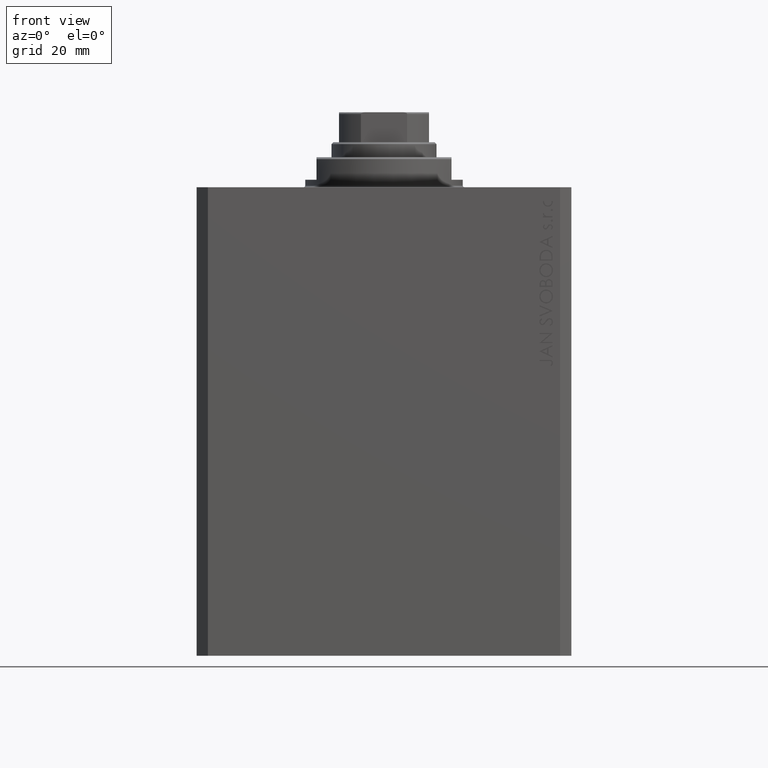
[diagram: clean part render]
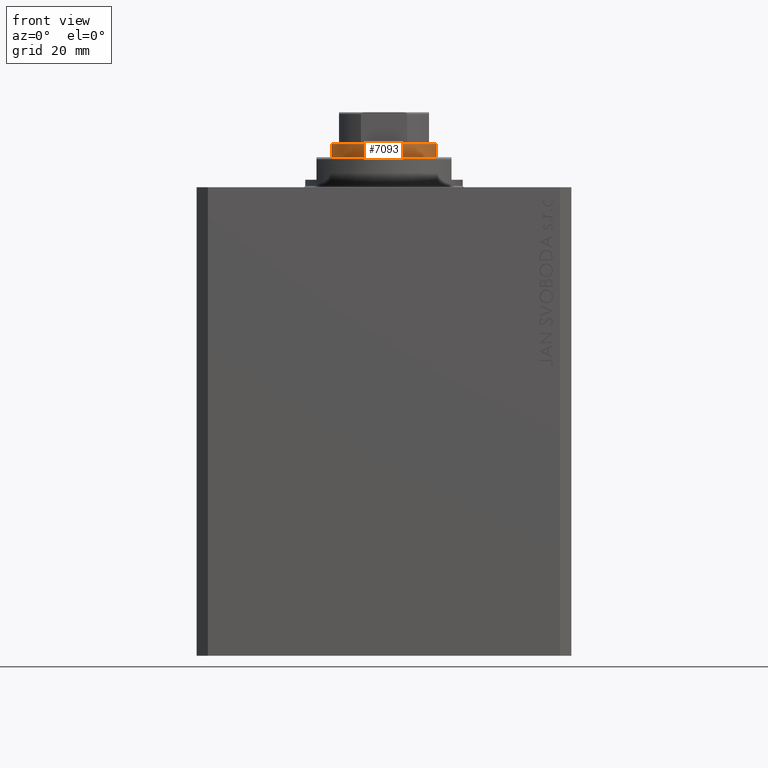
[diagram: same view with one face highlighted and labeled with its STEP entity id]
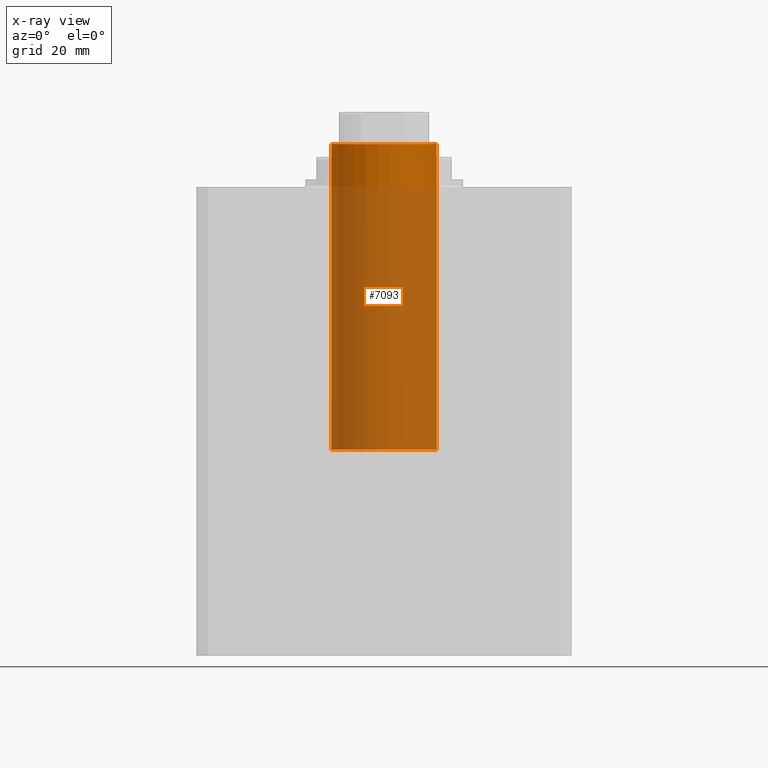
[diagram: x-ray of the same camera — body ghosted, the highlighted face saturated]
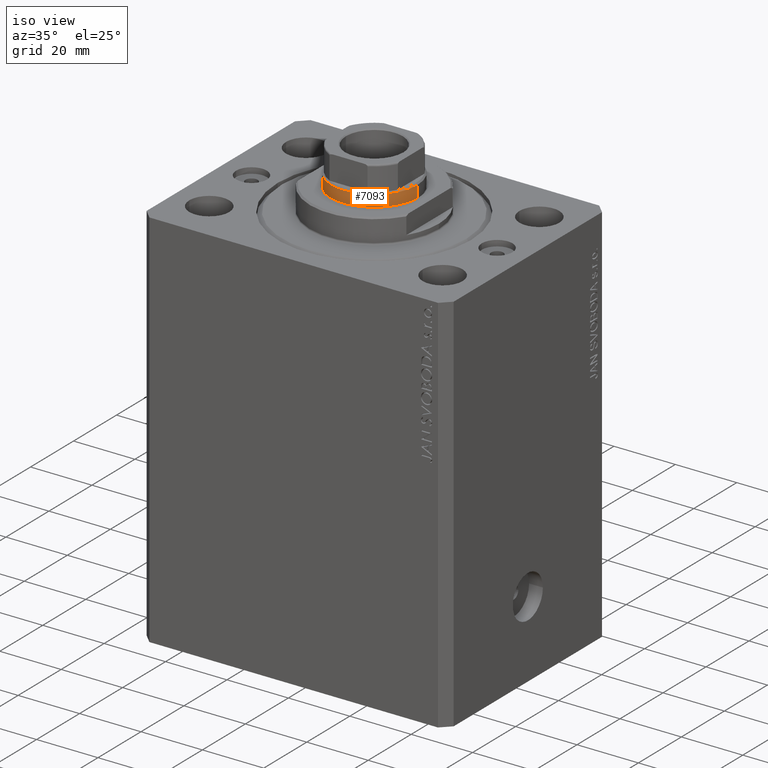
[diagram: same view with one face highlighted and labeled with its STEP entity id]
A machine part, front view. The second image highlights one B-rep face of the part: STEP entity #7093.
The next image is the same camera in x-ray: the body ghosted, the highlighted face saturated — about 86% of this face is hidden behind the body in this view.
A second angle (iso view) of the same face is appended — the face is thin or edge-on in the first view.
In plain terms, the highlighted cylindrical surface (partial cylindrical patch) has radius 14 mm, axis along (-0, -0, -1).
Its self-contained STEP definition (entity closure, byte-faithful):
#88 = AXIS2_PLACEMENT_3D ( 'NONE', #7032, #32570, #24933 ) ;
#750 = DIRECTION ( 'NONE',  ( 0.000000000000000000, 0.000000000000000000, 1.000000000000000000 ) ) ;
#1240 = CARTESIAN_POINT ( 'NONE',  ( 14.00000000000000000, 1.714505518806294638E-15, 43.10000000000000142 ) ) ;
#2663 = LINE ( 'NONE', #7172, #46845 ) ;
#6234 = CARTESIAN_POINT ( 'NONE',  ( -14.00000000000000000, 0.000000000000000000, 124.6000000000000085 ) ) ;
#7032 = CARTESIAN_POINT ( 'NONE',  ( 0.000000000000000000, 0.000000000000000000, 125.0999999999999943 ) ) ;
#7093 = ADVANCED_FACE ( 'NONE', ( #32802 ), #28522, .T. ) ;
#7172 = CARTESIAN_POINT ( 'NONE',  ( 14.00000000000000000, 1.714505518806294638E-15, 125.0999999999999943 ) ) ;
#7971 = LINE ( 'NONE', #40927, #34859 ) ;
#8134 = DIRECTION ( 'NONE',  ( 1.000000000000000000, 0.000000000000000000, 0.000000000000000000 ) ) ;
#8799 = EDGE_CURVE ( 'NONE', #41558, #12171, #46674, .T. ) ;
#11046 = CARTESIAN_POINT ( 'NONE',  ( 14.00000000000000000, 1.714505518806294638E-15, 124.6000000000000085 ) ) ;
#12141 = ORIENTED_EDGE ( 'NONE', *, *, #41121, .T. ) ;
#12171 = VERTEX_POINT ( 'NONE', #6234 ) ;
#12330 = DIRECTION ( 'NONE',  ( 0.000000000000000000, 0.000000000000000000, -1.000000000000000000 ) ) ;
#16245 = EDGE_CURVE ( 'NONE', #41558, #28802, #2663, .T. ) ;
#19469 = CARTESIAN_POINT ( 'NONE',  ( 0.000000000000000000, 0.000000000000000000, 124.6000000000000085 ) ) ;
#19569 = CARTESIAN_POINT ( 'NONE',  ( -14.00000000000000000, 0.000000000000000000, 43.10000000000000142 ) ) ;
#21718 = DIRECTION ( 'NONE',  ( -0.000000000000000000, -0.000000000000000000, -1.000000000000000000 ) ) ;
#24933 = DIRECTION ( 'NONE',  ( -1.000000000000000000, 0.000000000000000000, 0.000000000000000000 ) ) ;
#26282 = ORIENTED_EDGE ( 'NONE', *, *, #8799, .T. ) ;
#27046 = CIRCLE ( 'NONE', #27811, 14.00000000000000000 ) ;
#27786 = ORIENTED_EDGE ( 'NONE', *, *, #35470, .T. ) ;
#27811 = AXIS2_PLACEMENT_3D ( 'NONE', #29858, #750, #8134 ) ;
#28110 = VERTEX_POINT ( 'NONE', #19569 ) ;
#28522 = CYLINDRICAL_SURFACE ( 'NONE', #88, 14.00000000000000000 ) ;
#28802 = VERTEX_POINT ( 'NONE', #1240 ) ;
#29858 = CARTESIAN_POINT ( 'NONE',  ( 0.000000000000000000, 0.000000000000000000, 43.10000000000000142 ) ) ;
#30631 = AXIS2_PLACEMENT_3D ( 'NONE', #19469, #12330, #34041 ) ;
#32570 = DIRECTION ( 'NONE',  ( -0.000000000000000000, -0.000000000000000000, -1.000000000000000000 ) ) ;
#32802 = FACE_OUTER_BOUND ( 'NONE', #34016, .T. ) ;
#34016 = EDGE_LOOP ( 'NONE', ( #35335, #26282, #12141, #27786 ) ) ;
#34041 = DIRECTION ( 'NONE',  ( 1.000000000000000000, 0.000000000000000000, 0.000000000000000000 ) ) ;
#34859 = VECTOR ( 'NONE', #37565, 1000.000000000000000 ) ;
#35335 = ORIENTED_EDGE ( 'NONE', *, *, #16245, .F. ) ;
#35470 = EDGE_CURVE ( 'NONE', #28110, #28802, #27046, .T. ) ;
#37565 = DIRECTION ( 'NONE',  ( -0.000000000000000000, -0.000000000000000000, -1.000000000000000000 ) ) ;
#40927 = CARTESIAN_POINT ( 'NONE',  ( -14.00000000000000000, 0.000000000000000000, 125.0999999999999943 ) ) ;
#41121 = EDGE_CURVE ( 'NONE', #12171, #28110, #7971, .T. ) ;
#41558 = VERTEX_POINT ( 'NONE', #11046 ) ;
#46674 = CIRCLE ( 'NONE', #30631, 14.00000000000000000 ) ;
#46845 = VECTOR ( 'NONE', #21718, 1000.000000000000000 ) ;